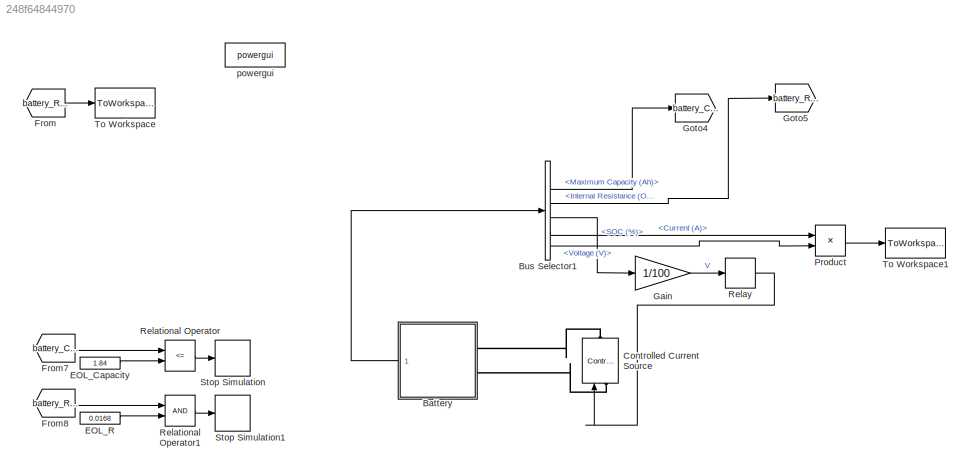
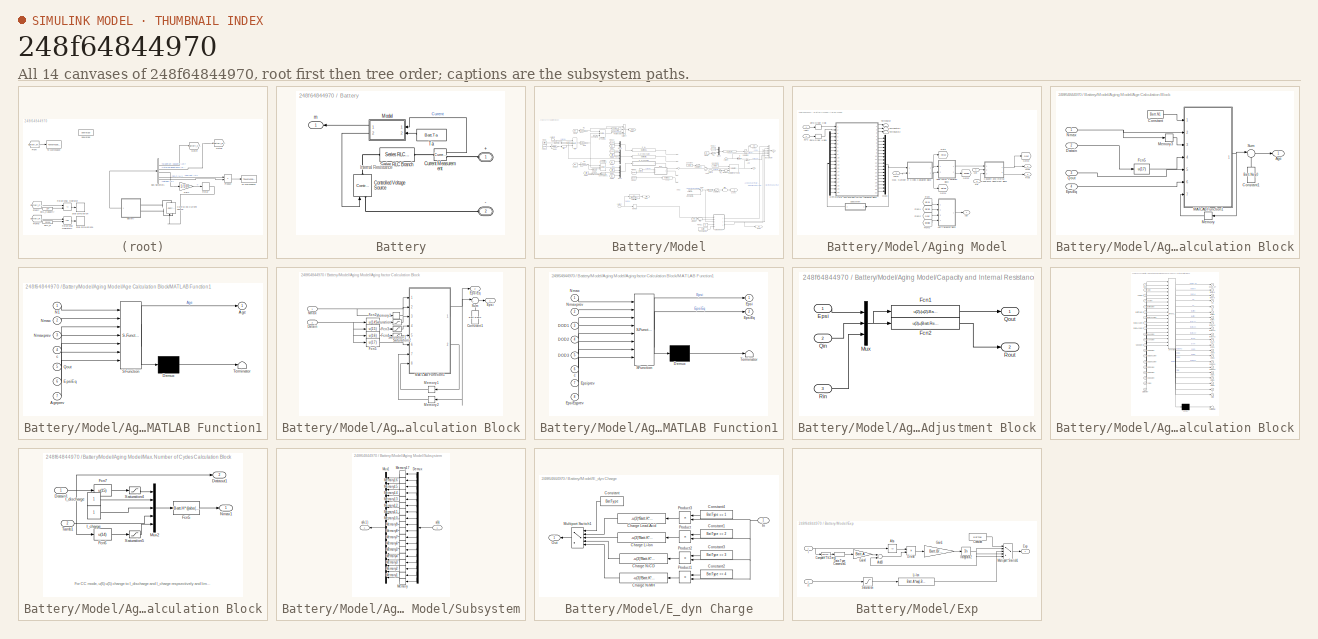
[diagram: thumbnail index - all 14 canvases of the model, root first then tree order]
MODEL slx_248f64844970
KIND model
CONFIG AbsTol = auto
CONFIG EnableMultiTasking = off
CONFIG FixedStep = auto
CONFIG MaxStep = auto
CONFIG MinStep = auto
CONFIG RelTol = 1e-3
CONFIG SampleTimeConstraint = Unconstrained
CONFIG Solver = VariableStepAuto
CONFIG SolverName = VariableStepAuto
CONFIG StartTime = 0.0
CONFIG StopTime = 3600*2000
BLOCK [SubSystem] Battery
  AncestorBlock = electricdrivelib/Extra Sources/Battery
  CloseFcn = sps_rtmsupport('CloseFcn',gcbh);
  CopyFcn = sps_rtmsupport('CopyFcn',gcbh);
  DeleteFcn = sps_rtmsupport('DeleteFcn',gcbh);
  DialogController = POWERSYS.PowerSysDialog
  InitFcn = BatteryCback(gcb,1)
  LoadFcn = sps_rtmsupport('LoadFcn',gcbh); BatteryLoadFcn(gcb)
  ModelCloseFcn = sps_rtmsupport('ModelCloseFcn',gcbh);
  NameChangeFcn = sps_rtmsupport('NameChangeFcn',gcbh);
  OpenFcn = sps_rtmsupport('OpenFcn',gcbh, [1,2,3,4,9,18]);
  Ports = [0, 1, 0, 0, 0, 2]
  PostSaveFcn = sps_rtmsupport('PostSaveFcn',gcbh);
  PreCopyFcn = sps_rtmsupport('PreCopyFcn',gcbh);
  PreDeleteFcn = sps_rtmsupport('PreDeleteFcn',gcbh);
  PreSaveFcn = sps_rtmsupport('PreSaveFcn',gcbh);
  RequestExecContextInheritance = off
  StartFcn = sps_rtmsupport('StartFcn',gcbh);
  StopFcn = sps_rtmsupport('StopFcn',gcbh);
  UndoDeleteFcn = sps_rtmsupport('UndoDeleteFcn',gcbh);
BLOCK [PMIOPort] Battery/+
  Side = Left
  Tag = PMCPort
BLOCK [PMIOPort] Battery/-
  Port = 2
  Side = Left
  Tag = PMCPort
BLOCK [Reference] Battery/Controlled Voltage Source  REF=powerlib/Electrical
Sources/Controlled Voltage Source
  Ports = [1, 0, 0, 0, 0, 1, 1]
  SourceBlock = powerlib/Electrical\nSources/Controlled Voltage Source
  SourceProductBaseCode = PS
  SourceType = Controlled Voltage Source
BLOCK [Reference] Battery/Current Measurement  REF=powerlib/Measurements/Current Measurement
  Ports = [0, 1, 0, 0, 0, 1, 1]
  SourceBlock = powerlib/Measurements/Current Measurement
  SourceProductBaseCode = PS
  SourceType = Current Measurement
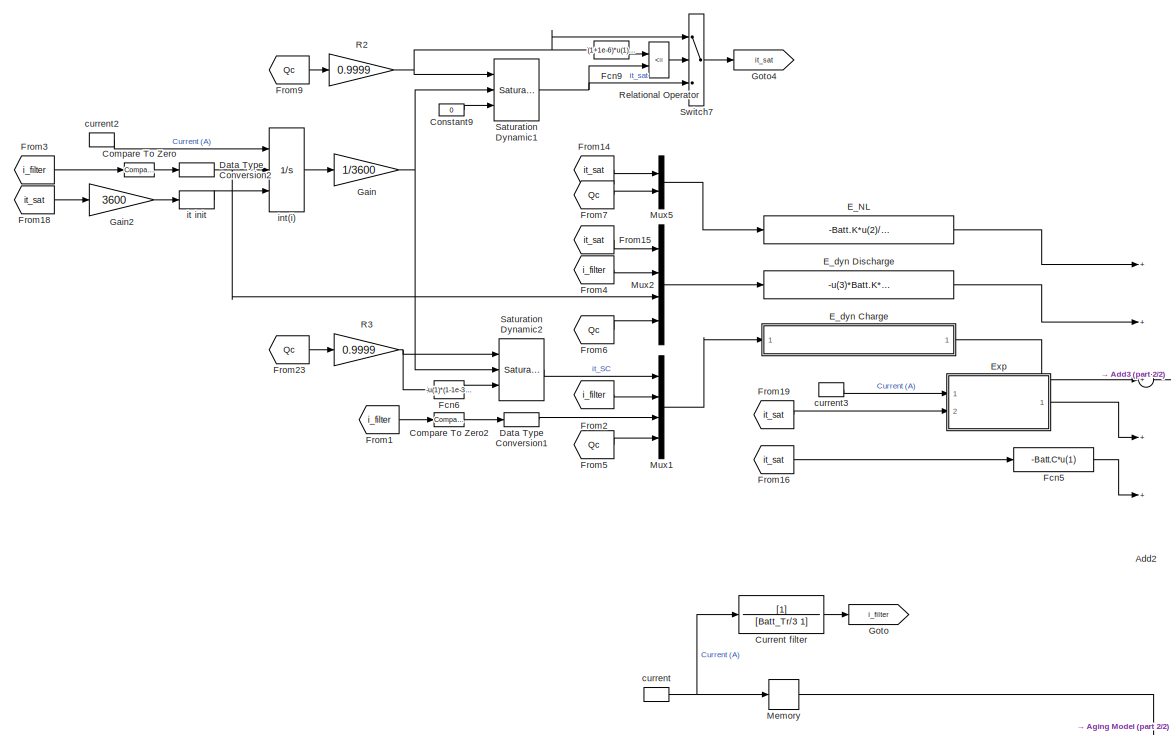
[diagram: Battery/Model - part 1/2, left side, full height]
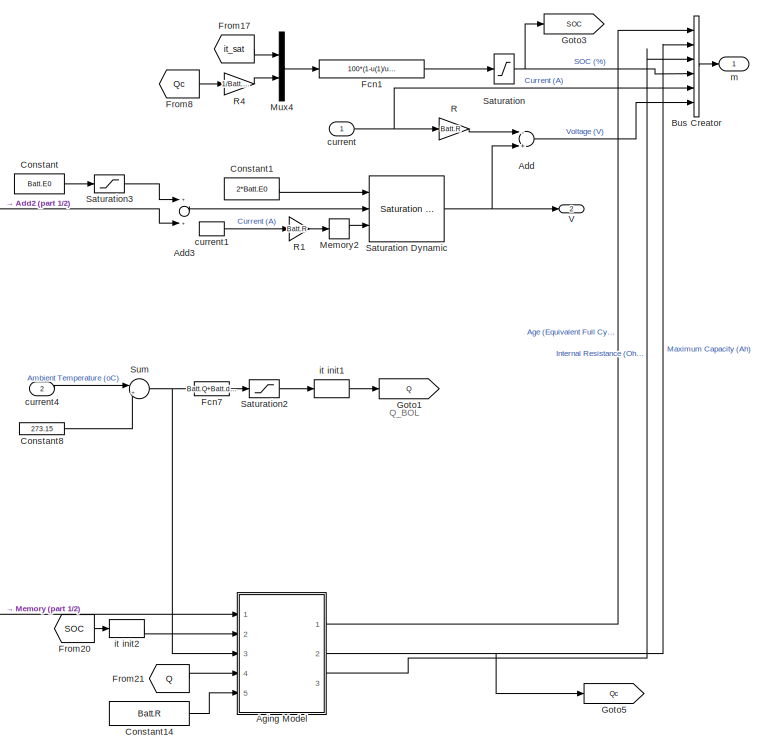
[diagram: Battery/Model - part 2/2, right side, full height]
BLOCK [SubSystem] Battery/Model
  AncestorBlock = spsBatteryModel/Continuous thermal aging
  Ports = [2, 2]
  RequestExecContextInheritance = off
BLOCK [Sum] Battery/Model/Add
  InputSameDT = off
  Inputs = -+
  OutDataTypeStr = Inherit: Inherit via internal rule
  Ports = [2, 1]
  SaturateOnIntegerOverflow = off
BLOCK [Sum] Battery/Model/Add2
  InputSameDT = off
  Inputs = +++++
  OutDataTypeStr = Inherit: Inherit via internal rule
  Ports = [5, 1]
  SaturateOnIntegerOverflow = off
BLOCK [Sum] Battery/Model/Add3
  InputSameDT = off
  OutDataTypeStr = Inherit: Inherit via internal rule
  Ports = [2, 1]
  SaturateOnIntegerOverflow = off
BLOCK [SubSystem] Battery/Model/Aging Model
  AncestorBlock = spsBatteryModel/Aging Model
  Ports = [5, 3]
  RequestExecContextInheritance = off
BLOCK [Outport] Battery/Model/Aging Model/Age
  IconDisplay = Port number
BLOCK [SubSystem] Battery/Model/Aging Model/Age Calculation Block
  Ports = [4, 1]
  RequestExecContextInheritance = off
BLOCK [Outport] Battery/Model/Aging Model/Age Calculation Block/Age
  IconDisplay = Port number
BLOCK [Constant] Battery/Model/Aging Model/Age Calculation Block/Constant
  Value = Batt.N1
BLOCK [Constant] Battery/Model/Aging Model/Age Calculation Block/Constant1
  Value = Batt.Neq0
BLOCK [Inport] Battery/Model/Aging Model/Age Calculation Block/Datain
  IconDisplay = Port number
  Port = 2
BLOCK [Inport] Battery/Model/Aging Model/Age Calculation Block/EpsiEq
  IconDisplay = Port number
  Port = 4
BLOCK [Fcn] Battery/Model/Aging Model/Age Calculation Block/Fcn5
  Expr = u(17)
BLOCK [SubSystem] Battery/Model/Aging Model/Age Calculation Block/MATLAB Function1
  ErrorFcn = Stateflow.Translate.translate
  PermitHierarchicalResolution = ExplicitOnly
  Ports = [7, 1]
  RequestExecContextInheritance = off
  SFBlockType = MATLAB Function
  TreatAsAtomicUnit = on
BLOCK [Demux] Battery/Model/Aging Model/Age Calculation Block/MATLAB Function1/ Demux 
  DisplayOption = bar
  Outputs = 1
  Ports = [1, 1]
BLOCK [S-Function] Battery/Model/Aging Model/Age Calculation Block/MATLAB Function1/ SFunction 
  EnableBusSupport = on
  FunctionName = sf_sfun
  PortCounts = [7 2]
  Ports = [7, 2]
  SFcnIsStateOwnerBlock = off
  SFunctionDeploymentMode = off
  Tag = Stateflow S-Function CC_2019a 4
BLOCK [Terminator] Battery/Model/Aging Model/Age Calculation Block/MATLAB Function1/ Terminator 
BLOCK [Outport] Battery/Model/Aging Model/Age Calculation Block/MATLAB Function1/Age
  IconDisplay = Port number
BLOCK [Inport] Battery/Model/Aging Model/Age Calculation Block/MATLAB Function1/Ageprev
  IconDisplay = Port number
  Port = 7
BLOCK [Inport] Battery/Model/Aging Model/Age Calculation Block/MATLAB Function1/EpsiEq
  IconDisplay = Port number
  Port = 6
BLOCK [Inport] Battery/Model/Aging Model/Age Calculation Block/MATLAB Function1/N1
  IconDisplay = Port number
BLOCK [Inport] Battery/Model/Aging Model/Age Calculation Block/MATLAB Function1/Nmax
  IconDisplay = Port number
  Port = 2
BLOCK [Inport] Battery/Model/Aging Model/Age Calculation Block/MATLAB Function1/Nmaxprev
  IconDisplay = Port number
  Port = 3
BLOCK [Inport] Battery/Model/Aging Model/Age Calculation Block/MATLAB Function1/Qout
  IconDisplay = Port number
  Port = 5
BLOCK [Inport] Battery/Model/Aging Model/Age Calculation Block/MATLAB Function1/c
  IconDisplay = Port number
  Port = 4
BLOCK [Memory] Battery/Model/Aging Model/Age Calculation Block/Memory
  InheritSampleTime = on
BLOCK [Memory] Battery/Model/Aging Model/Age Calculation Block/Memory3
  InheritSampleTime = on
BLOCK [Inport] Battery/Model/Aging Model/Age Calculation Block/Nmax
  IconDisplay = Port number
BLOCK [Inport] Battery/Model/Aging Model/Age Calculation Block/Qout
  IconDisplay = Port number
  Port = 3
BLOCK [Sum] Battery/Model/Aging Model/Age Calculation Block/Sum
  IconShape = round
  InputSameDT = off
  Inputs = |++
  OutDataTypeStr = Inherit: Inherit via internal rule
  Ports = [2, 1]
  SaturateOnIntegerOverflow = off
BLOCK [SubSystem] Battery/Model/Aging Model/Aging factor Calculation Block
  Ports = [2, 2]
  RequestExecContextInheritance = off
BLOCK [Constant] Battery/Model/Aging Model/Aging factor Calculation Block/Constant1
  Value = Batt.Epsi0
BLOCK [Inport] Battery/Model/Aging Model/Aging factor Calculation Block/Datain
  IconDisplay = Port number
  Port = 2
BLOCK [Outport] Battery/Model/Aging Model/Aging factor Calculation Block/Epsi
  IconDisplay = Port number
BLOCK [Outport] Battery/Model/Aging Model/Aging factor Calculation Block/EpsiEq
  IconDisplay = Port number
  Port = 2
BLOCK [Fcn] Battery/Model/Aging Model/Aging factor Calculation Block/Fcn2
  Expr = u(14)
BLOCK [Fcn] Battery/Model/Aging Model/Aging factor Calculation Block/Fcn3
  Expr = u(15)
BLOCK [Fcn] Battery/Model/Aging Model/Aging factor Calculation Block/Fcn4
  Expr = u(16)
BLOCK [Fcn] Battery/Model/Aging Model/Aging factor Calculation Block/Fcn5
  Expr = u(17)
BLOCK [SubSystem] Battery/Model/Aging Model/Aging factor Calculation Block/MATLAB Function1
  ErrorFcn = Stateflow.Translate.translate
  PermitHierarchicalResolution = ExplicitOnly
  Ports = [8, 2]
  RequestExecContextInheritance = off
  SFBlockType = MATLAB Function
  TreatAsAtomicUnit = on
BLOCK [Demux] Battery/Model/Aging Model/Aging factor Calculation Block/MATLAB Function1/ Demux 
  DisplayOption = bar
  Outputs = 1
  Ports = [1, 1]
BLOCK [S-Function] Battery/Model/Aging Model/Aging factor Calculation Block/MATLAB Function1/ SFunction 
  EnableBusSupport = on
  FunctionName = sf_sfun
  PortCounts = [8 3]
  Ports = [8, 3]
  SFcnIsStateOwnerBlock = off
  SFunctionDeploymentMode = off
  Tag = Stateflow S-Function CC_2019a 1
BLOCK [Terminator] Battery/Model/Aging Model/Aging factor Calculation Block/MATLAB Function1/ Terminator 
BLOCK [Inport] Battery/Model/Aging Model/Aging factor Calculation Block/MATLAB Function1/DOD1
  IconDisplay = Port number
  Port = 3
BLOCK [Inport] Battery/Model/Aging Model/Aging factor Calculation Block/MATLAB Function1/DOD2
  IconDisplay = Port number
  Port = 4
BLOCK [Inport] Battery/Model/Aging Model/Aging factor Calculation Block/MATLAB Function1/DOD3
  IconDisplay = Port number
  Port = 5
BLOCK [Outport] Battery/Model/Aging Model/Aging factor Calculation Block/MATLAB Function1/Epsi
  IconDisplay = Port number
BLOCK [Outport] Battery/Model/Aging Model/Aging factor Calculation Block/MATLAB Function1/EpsiEq
  IconDisplay = Port number
  Port = 2
BLOCK [Inport] Battery/Model/Aging Model/Aging factor Calculation Block/MATLAB Function1/EpsiEqprev
  IconDisplay = Port number
  Port = 8
BLOCK [Inport] Battery/Model/Aging Model/Aging factor Calculation Block/MATLAB Function1/Epsiprev
  IconDisplay = Port number
  Port = 7
BLOCK [Inport] Battery/Model/Aging Model/Aging factor Calculation Block/MATLAB Function1/Nmax
  IconDisplay = Port number
BLOCK [Inport] Battery/Model/Aging Model/Aging factor Calculation Block/MATLAB Function1/Nmaxprev
  IconDisplay = Port number
  Port = 2
BLOCK [Inport] Battery/Model/Aging Model/Aging factor Calculation Block/MATLAB Function1/c
  IconDisplay = Port number
  Port = 6
BLOCK [Memory] Battery/Model/Aging Model/Aging factor Calculation Block/Memory1
  InheritSampleTime = on
BLOCK [Memory] Battery/Model/Aging Model/Aging factor Calculation Block/Memory2
  InheritSampleTime = on
BLOCK [Memory] Battery/Model/Aging Model/Aging factor Calculation Block/Memory3
  InheritSampleTime = on
BLOCK [Inport] Battery/Model/Aging Model/Aging factor Calculation Block/Nmax
  IconDisplay = Port number
BLOCK [Saturate] Battery/Model/Aging Model/Aging factor Calculation Block/Saturation
  InputPortMap = u0
  LowerLimit = 0.01
  Ports = [1, 1]
  UpperLimit = inf
BLOCK [Saturate] Battery/Model/Aging Model/Aging factor Calculation Block/Saturation1
  InputPortMap = u0
  LowerLimit = 0.01
  Ports = [1, 1]
  UpperLimit = inf
BLOCK [Saturate] Battery/Model/Aging Model/Aging factor Calculation Block/Saturation2
  InputPortMap = u0
  LowerLimit = 0.01
  Ports = [1, 1]
  UpperLimit = inf
BLOCK [Sum] Battery/Model/Aging Model/Aging factor Calculation Block/Sum
  IconShape = round
  InputSameDT = off
  Inputs = |++
  OutDataTypeStr = Inherit: Inherit via internal rule
  Ports = [2, 1]
  SaturateOnIntegerOverflow = off
BLOCK [SubSystem] Battery/Model/Aging Model/Capacity and Internal Resistance Adjustment Block
  Ports = [3, 2]
  RequestExecContextInheritance = off
BLOCK [Inport] Battery/Model/Aging Model/Capacity and Internal Resistance Adjustment Block/Epsi
  IconDisplay = Port number
BLOCK [Fcn] Battery/Model/Aging Model/Capacity and Internal Resistance Adjustment Block/Fcn1
  Expr = u(2)-(u(2)-Batt.Qeol)*u(1)
BLOCK [Fcn] Battery/Model/Aging Model/Capacity and Internal Resistance Adjustment Block/Fcn2
  Expr = u(3)+(Batt.Reol-u(3))*u(1)
BLOCK [Mux] Battery/Model/Aging Model/Capacity and Internal Resistance Adjustment Block/Mux
  DisplayOption = bar
  Inputs = 3
  Ports = [3, 1]
BLOCK [Inport] Battery/Model/Aging Model/Capacity and Internal Resistance Adjustment Block/Qin
  IconDisplay = Port number
  Port = 2
BLOCK [Outport] Battery/Model/Aging Model/Capacity and Internal Resistance Adjustment Block/Qout
  IconDisplay = Port number
BLOCK [Inport] Battery/Model/Aging Model/Capacity and Internal Resistance Adjustment Block/Rin
  IconDisplay = Port number
  Port = 3
BLOCK [Outport] Battery/Model/Aging Model/Capacity and Internal Resistance Adjustment Block/Rout
  IconDisplay = Port number
  Port = 2
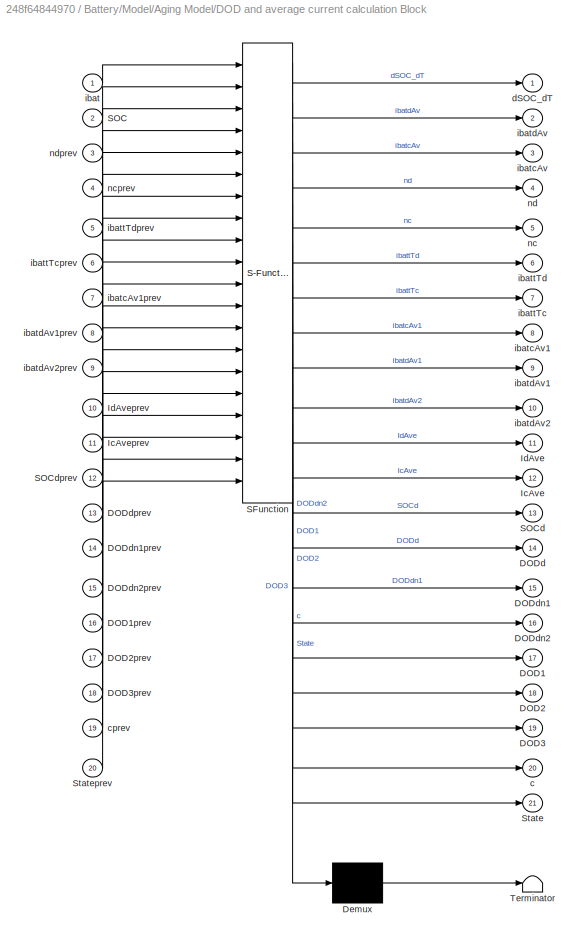
BLOCK [SubSystem] Battery/Model/Aging Model/DOD and average current calculation Block
  ErrorFcn = Stateflow.Translate.translate
  PermitHierarchicalResolution = ExplicitOnly
  Ports = [20, 21]
  RequestExecContextInheritance = off
  SFBlockType = MATLAB Function
  TreatAsAtomicUnit = on
BLOCK [Demux] Battery/Model/Aging Model/DOD and average current calculation Block/ Demux 
  DisplayOption = bar
  Outputs = 1
  Ports = [1, 1]
BLOCK [S-Function] Battery/Model/Aging Model/DOD and average current calculation Block/ SFunction 
  EnableBusSupport = on
  FunctionName = sf_sfun
  PortCounts = [20 22]
  Ports = [20, 22]
  SFcnIsStateOwnerBlock = off
  SFunctionDeploymentMode = off
  Tag = Stateflow S-Function CC_2019a 3
BLOCK [Terminator] Battery/Model/Aging Model/DOD and average current calculation Block/ Terminator 
BLOCK [Outport] Battery/Model/Aging Model/DOD and average current calculation Block/DOD1
  IconDisplay = Port number
  Port = 17
BLOCK [Inport] Battery/Model/Aging Model/DOD and average current calculation Block/DOD1prev
  IconDisplay = Port number
  Port = 16
BLOCK [Outport] Battery/Model/Aging Model/DOD and average current calculation Block/DOD2
  IconDisplay = Port number
  Port = 18
BLOCK [Inport] Battery/Model/Aging Model/DOD and average current calculation Block/DOD2prev
  IconDisplay = Port number
  Port = 17
BLOCK [Outport] Battery/Model/Aging Model/DOD and average current calculation Block/DOD3
  IconDisplay = Port number
  Port = 19
BLOCK [Inport] Battery/Model/Aging Model/DOD and average current calculation Block/DOD3prev
  IconDisplay = Port number
  Port = 18
BLOCK [Outport] Battery/Model/Aging Model/DOD and average current calculation Block/DODd
  IconDisplay = Port number
  Port = 14
BLOCK [Outport] Battery/Model/Aging Model/DOD and average current calculation Block/DODdn1
  IconDisplay = Port number
  Port = 15
BLOCK [Inport] Battery/Model/Aging Model/DOD and average current calculation Block/DODdn1prev
  IconDisplay = Port number
  Port = 14
BLOCK [Outport] Battery/Model/Aging Model/DOD and average current calculation Block/DODdn2
  IconDisplay = Port number
  Port = 16
BLOCK [Inport] Battery/Model/Aging Model/DOD and average current calculation Block/DODdn2prev
  IconDisplay = Port number
  Port = 15
BLOCK [Inport] Battery/Model/Aging Model/DOD and average current calculation Block/DODdprev
  IconDisplay = Port number
  Port = 13
BLOCK [Outport] Battery/Model/Aging Model/DOD and average current calculation Block/IcAve
  IconDisplay = Port number
  Port = 12
BLOCK [Inport] Battery/Model/Aging Model/DOD and average current calculation Block/IcAveprev
  IconDisplay = Port number
  Port = 11
BLOCK [Outport] Battery/Model/Aging Model/DOD and average current calculation Block/IdAve
  IconDisplay = Port number
  Port = 11
BLOCK [Inport] Battery/Model/Aging Model/DOD and average current calculation Block/IdAveprev
  IconDisplay = Port number
  Port = 10
BLOCK [Inport] Battery/Model/Aging Model/DOD and average current calculation Block/SOC
  IconDisplay = Port number
  Port = 2
BLOCK [Outport] Battery/Model/Aging Model/DOD and average current calculation Block/SOCd
  IconDisplay = Port number
  Port = 13
BLOCK [Inport] Battery/Model/Aging Model/DOD and average current calculation Block/SOCdprev
  IconDisplay = Port number
  Port = 12
BLOCK [Outport] Battery/Model/Aging Model/DOD and average current calculation Block/State
  IconDisplay = Port number
  Port = 21
BLOCK [Inport] Battery/Model/Aging Model/DOD and average current calculation Block/Stateprev
  IconDisplay = Port number
  Port = 20
BLOCK [Outport] Battery/Model/Aging Model/DOD and average current calculation Block/c
  IconDisplay = Port number
  Port = 20
BLOCK [Inport] Battery/Model/Aging Model/DOD and average current calculation Block/cprev
  IconDisplay = Port number
  Port = 19
BLOCK [Outport] Battery/Model/Aging Model/DOD and average current calculation Block/dSOC_dT
  IconDisplay = Port number
BLOCK [Inport] Battery/Model/Aging Model/DOD and average current calculation Block/ibat
  IconDisplay = Port number
BLOCK [Outport] Battery/Model/Aging Model/DOD and average current calculation Block/ibatcAv
  IconDisplay = Port number
  Port = 3
BLOCK [Outport] Battery/Model/Aging Model/DOD and average current calculation Block/ibatcAv1
  IconDisplay = Port number
  Port = 8
BLOCK [Inport] Battery/Model/Aging Model/DOD and average current calculation Block/ibatcAv1prev
  IconDisplay = Port number
  Port = 7
BLOCK [Outport] Battery/Model/Aging Model/DOD and average current calculation Block/ibatdAv
  IconDisplay = Port number
  Port = 2
BLOCK [Outport] Battery/Model/Aging Model/DOD and average current calculation Block/ibatdAv1
  IconDisplay = Port number
  Port = 9
BLOCK [Inport] Battery/Model/Aging Model/DOD and average current calculation Block/ibatdAv1prev
  IconDisplay = Port number
  Port = 8
BLOCK [Outport] Battery/Model/Aging Model/DOD and average current calculation Block/ibatdAv2
  IconDisplay = Port number
  Port = 10
BLOCK [Inport] Battery/Model/Aging Model/DOD and average current calculation Block/ibatdAv2prev
  IconDisplay = Port number
  Port = 9
BLOCK [Outport] Battery/Model/Aging Model/DOD and average current calculation Block/ibattTc
  IconDisplay = Port number
  Port = 7
BLOCK [Inport] Battery/Model/Aging Model/DOD and average current calculation Block/ibattTcprev
  IconDisplay = Port number
  Port = 6
BLOCK [Outport] Battery/Model/Aging Model/DOD and average current calculation Block/ibattTd
  IconDisplay = Port number
  Port = 6
BLOCK [Inport] Battery/Model/Aging Model/DOD and average current calculation Block/ibattTdprev
  IconDisplay = Port number
  Port = 5
BLOCK [Outport] Battery/Model/Aging Model/DOD and average current calculation Block/nc
  IconDisplay = Port number
  Port = 5
BLOCK [Inport] Battery/Model/Aging Model/DOD and average current calculation Block/ncprev
  IconDisplay = Port number
  Port = 4
BLOCK [Outport] Battery/Model/Aging Model/DOD and average current calculation Block/nd
  IconDisplay = Port number
  Port = 4
BLOCK [Inport] Battery/Model/Aging Model/DOD and average current calculation Block/ndprev
  IconDisplay = Port number
  Port = 3
BLOCK [Demux] Battery/Model/Aging Model/Demux1
  Outputs = 18
  Ports = [1, 18]
BLOCK [From] Battery/Model/Aging Model/From
  GotoTag = Nmax
BLOCK [From] Battery/Model/Aging Model/From1
  GotoTag = Datain
BLOCK [From] Battery/Model/Aging Model/From2
  GotoTag = Qout
BLOCK [From] Battery/Model/Aging Model/From3
  GotoTag = EpsiEq
BLOCK [Goto] Battery/Model/Aging Model/Goto
  GotoTag = Nmax
BLOCK [Goto] Battery/Model/Aging Model/Goto1
  GotoTag = Datain
BLOCK [Goto] Battery/Model/Aging Model/Goto2
  GotoTag = EpsiEq
BLOCK [Goto] Battery/Model/Aging Model/Goto3
  GotoTag = Qout
BLOCK [Inport] Battery/Model/Aging Model/Ibatt
  IconDisplay = Port number
BLOCK [SubSystem] Battery/Model/Aging Model/Max. Number of Cycles Calculation Block
  Ports = [2, 2]
  RequestExecContextInheritance = off
BLOCK [Inport] Battery/Model/Aging Model/Max. Number of Cycles Calculation Block/Datain1
  IconDisplay = Port number
BLOCK [Outport] Battery/Model/Aging Model/Max. Number of Cycles Calculation Block/Dataout1
  IconDisplay = Port number
  Port = 2
BLOCK [Fcn] Battery/Model/Aging Model/Max. Number of Cycles Calculation Block/Fcn5
  Expr = Batt.H*((abs(u(1)-u(5))/100)^(-1))*exp(-Batt.phi*((1/Batt.Tref)-(1/u(4))))*(u(2)^(-Batt.gamma1))*(u(3)^(-Batt.gamma2))
BLOCK [Fcn] Battery/Model/Aging Model/Max. Number of Cycles Calculation Block/Fcn6
  Expr = u(14)
BLOCK [Fcn] Battery/Model/Aging Model/Max. Number of Cycles Calculation Block/Fcn7
  Expr = u(15)
BLOCK [Constant] Battery/Model/Aging Model/Max. Number of Cycles Calculation Block/I_charge
BLOCK [Constant] Battery/Model/Aging Model/Max. Number of Cycles Calculation Block/I_discharge
BLOCK [Mux] Battery/Model/Aging Model/Max. Number of Cycles Calculation Block/Mux2
  DisplayOption = bar
  Inputs = 5
  Ports = [5, 1]
BLOCK [Outport] Battery/Model/Aging Model/Max. Number of Cycles Calculation Block/Nmax1
  IconDisplay = Port number
BLOCK [Saturate] Battery/Model/Aging Model/Max. Number of Cycles Calculation Block/Saturation4
  InputPortMap = u0
  LowerLimit = 0.01
  Ports = [1, 1]
  UpperLimit = inf
BLOCK [Saturate] Battery/Model/Aging Model/Max. Number of Cycles Calculation Block/Saturation5
  InputPortMap = u0
  LowerLimit = 0.01
  Ports = [1, 1]
  UpperLimit = inf
BLOCK [Inport] Battery/Model/Aging Model/Max. Number of Cycles Calculation Block/Tamb1
  IconDisplay = Port number
  Port = 2
BLOCK [Mux] Battery/Model/Aging Model/Mux3
  Inputs = 18
  Ports = [18, 1]
BLOCK [Inport] Battery/Model/Aging Model/Qin
  IconDisplay = Port number
  Port = 4
BLOCK [Outport] Battery/Model/Aging Model/Qout
  IconDisplay = Port number
  Port = 2
BLOCK [Inport] Battery/Model/Aging Model/Rin
  IconDisplay = Port number
  Port = 5
BLOCK [Outport] Battery/Model/Aging Model/Rout
  IconDisplay = Port number
  Port = 3
BLOCK [Inport] Battery/Model/Aging Model/SOC
  IconDisplay = Port number
  Port = 2
BLOCK [SubSystem] Battery/Model/Aging Model/Subsystem
  Ports = [1, 1]
  RequestExecContextInheritance = off
BLOCK [Demux] Battery/Model/Aging Model/Subsystem/Demux
  Outputs = 18
  Ports = [1, 18]
BLOCK [Memory] Battery/Model/Aging Model/Subsystem/Memory
  InheritSampleTime = on
  InitialCondition = 1
BLOCK [Memory] Battery/Model/Aging Model/Subsystem/Memory1
  InheritSampleTime = on
BLOCK [Memory] Battery/Model/Aging Model/Subsystem/Memory10
  InheritSampleTime = on
BLOCK [Memory] Battery/Model/Aging Model/Subsystem/Memory11
  InheritSampleTime = on
BLOCK [Memory] Battery/Model/Aging Model/Subsystem/Memory12
  InheritSampleTime = on
BLOCK [Memory] Battery/Model/Aging Model/Subsystem/Memory13
  InheritSampleTime = on
BLOCK [Memory] Battery/Model/Aging Model/Subsystem/Memory14
  InheritSampleTime = on
BLOCK [Memory] Battery/Model/Aging Model/Subsystem/Memory15
  InheritSampleTime = on
BLOCK [Memory] Battery/Model/Aging Model/Subsystem/Memory16
  InheritSampleTime = on
BLOCK [Memory] Battery/Model/Aging Model/Subsystem/Memory17
  InheritSampleTime = on
BLOCK [Memory] Battery/Model/Aging Model/Subsystem/Memory2
  InheritSampleTime = on
BLOCK [Memory] Battery/Model/Aging Model/Subsystem/Memory3
  InheritSampleTime = on
BLOCK [Memory] Battery/Model/Aging Model/Subsystem/Memory4
  InheritSampleTime = on
BLOCK [Memory] Battery/Model/Aging Model/Subsystem/Memory5
  InheritSampleTime = on
BLOCK [Memory] Battery/Model/Aging Model/Subsystem/Memory6
  InheritSampleTime = on
BLOCK [Memory] Battery/Model/Aging Model/Subsystem/Memory7
  InheritSampleTime = on
BLOCK [Memory] Battery/Model/Aging Model/Subsystem/Memory8
  InheritSampleTime = on
  InitialCondition = SOC
BLOCK [Memory] Battery/Model/Aging Model/Subsystem/Memory9
  InheritSampleTime = on
BLOCK [Mux] Battery/Model/Aging Model/Subsystem/Mux1
  Inputs = 18
  Ports = [18, 1]
BLOCK [Inport] Battery/Model/Aging Model/Subsystem/x(k)
  IconDisplay = Port number
BLOCK [Outport] Battery/Model/Aging Model/Subsystem/x(k-1)
  IconDisplay = Port number
BLOCK [Inport] Battery/Model/Aging Model/Tamb
  IconDisplay = Port number
  Port = 3
BLOCK [Terminator] Battery/Model/Aging Model/Terminator
BLOCK [Terminator] Battery/Model/Aging Model/Terminator1
BLOCK [Terminator] Battery/Model/Aging Model/Terminator2
BLOCK [ZeroOrderHold] Battery/Model/Aging Model/Zero-Order Hold
  SampleTime = Batt.Tsim
BLOCK [ZeroOrderHold] Battery/Model/Aging Model/Zero-Order Hold1
  SampleTime = Batt.Tsim
BLOCK [BusCreator] Battery/Model/Bus Creator
  DisplayOption = bar
  InheritFromInputs = on
  Inputs = 6
  Ports = [6, 1]
BLOCK [Reference] Battery/Model/Compare To Zero  REF=simulink/Logic and Bit
Operations/Compare
To Zero
  Ports = [1, 1]
  SourceBlock = simulink/Logic and Bit\nOperations/Compare\nTo Zero
  SourceProductBaseCode = SL
  SourceType = Compare To Zero
BLOCK [Reference] Battery/Model/Compare To Zero2  REF=simulink/Logic and Bit
Operations/Compare
To Zero
  Ports = [1, 1]
  SourceBlock = simulink/Logic and Bit\nOperations/Compare\nTo Zero
  SourceProductBaseCode = SL
  SourceType = Compare To Zero
BLOCK [Constant] Battery/Model/Constant
  Value = Batt.E0
BLOCK [Constant] Battery/Model/Constant1
  Value = 2*Batt.E0
BLOCK [Constant] Battery/Model/Constant14
  Value = Batt.R
BLOCK [Constant] Battery/Model/Constant8
  Value = 273.15
BLOCK [Constant] Battery/Model/Constant9
  Value = 0
BLOCK [TransferFcn] Battery/Model/Current filter
  Denominator = [Batt_Tr/3 1]
BLOCK [DataTypeConversion] Battery/Model/Data Type Conversion1
  RndMeth = Floor
  SaturateOnIntegerOverflow = off
BLOCK [DataTypeConversion] Battery/Model/Data Type Conversion2
  RndMeth = Floor
  SaturateOnIntegerOverflow = off
BLOCK [Fcn] Battery/Model/E_NL
  Expr = -Batt.K*u(2)/(u(2)-u(1))*u(1)
BLOCK [SubSystem] Battery/Model/E_dyn Charge
  Ports = [1, 1]
  RequestExecContextInheritance = off
BLOCK [Fcn] Battery/Model/E_dyn Charge/Charge Lead-Acid
  Expr = -u(3)*Batt.K*u(2)*(Batt.Q/(u(1)+Batt.Q*Batt.kc))
BLOCK [Fcn] Battery/Model/E_dyn Charge/Charge Li-Ion
  Expr = -u(3)*Batt.K*u(2)*u(4)/(u(1)+u(4)*Batt.kc)
BLOCK [Fcn] Battery/Model/E_dyn Charge/Charge NiCD
  Expr = -u(3)*Batt.K*u(2)*(Batt.Q/(abs(u(1))+Batt.Q*Batt.kc))
BLOCK [Fcn] Battery/Model/E_dyn Charge/Charge NiMH
  Expr = -u(3)*Batt.K*u(2)*(Batt.Q/(abs(u(1))+Batt.Q*Batt.kc))
BLOCK [Constant] Battery/Model/E_dyn Charge/Constant
  Value = BatType
BLOCK [Constant] Battery/Model/E_dyn Charge/Constant1
  OutDataTypeStr = double
  Value = BatType == 2
BLOCK [Constant] Battery/Model/E_dyn Charge/Constant2
  OutDataTypeStr = double
  Value = BatType == 4
BLOCK [Constant] Battery/Model/E_dyn Charge/Constant3
  OutDataTypeStr = double
  Value = BatType == 3
BLOCK [Constant] Battery/Model/E_dyn Charge/Constant4
  OutDataTypeStr = double
  Value = BatType == 1
BLOCK [Inport] Battery/Model/E_dyn Charge/In
  IconDisplay = Port number
BLOCK [MultiPortSwitch] Battery/Model/E_dyn Charge/Multiport Switch1
  InputSameDT = off
  Inputs = 4
  Ports = [5, 1]
  SaturateOnIntegerOverflow = off
BLOCK [Outport] Battery/Model/E_dyn Charge/Out
  IconDisplay = Port number
BLOCK [Product] Battery/Model/E_dyn Charge/Product
  InputSameDT = off
  OutDataTypeStr = Inherit: Inherit via internal rule
  Ports = [2, 1]
  SaturateOnIntegerOverflow = off
BLOCK [Product] Battery/Model/E_dyn Charge/Product1
  InputSameDT = off
  OutDataTypeStr = Inherit: Inherit via internal rule
  Ports = [2, 1]
  SaturateOnIntegerOverflow = off
BLOCK [Product] Battery/Model/E_dyn Charge/Product2
  InputSameDT = off
  OutDataTypeStr = Inherit: Inherit via internal rule
  Ports = [2, 1]
  SaturateOnIntegerOverflow = off
BLOCK [Product] Battery/Model/E_dyn Charge/Product3
  InputSameDT = off
  OutDataTypeStr = Inherit: Inherit via internal rule
  Ports = [2, 1]
  SaturateOnIntegerOverflow = off
BLOCK [Fcn] Battery/Model/E_dyn Discharge
  Expr = -u(3)*Batt.K*u(2)*u(4)/(u(4)-u(1))
BLOCK [SubSystem] Battery/Model/Exp
  Ports = [2, 1]
  RequestExecContextInheritance = off
BLOCK [Abs] Battery/Model/Exp/Abs
  SaturateOnIntegerOverflow = off
BLOCK [Sum] Battery/Model/Exp/Add3
  InputSameDT = off
  Inputs = +-
  OutDataTypeStr = Inherit: Inherit via internal rule
  Ports = [2, 1]
  SaturateOnIntegerOverflow = off
BLOCK [Reference] Battery/Model/Exp/Compare To Zero2  REF=simulink/Logic and Bit
Operations/Compare
To Zero
  Ports = [1, 1]
  SourceBlock = simulink/Logic and Bit\nOperations/Compare\nTo Zero
  SourceProductBaseCode = SL
  SourceType = Compare To Zero
BLOCK [Constant] Battery/Model/Exp/Constant
  Value = BatType
BLOCK [DataTypeConversion] Battery/Model/Exp/Data Type Conversion1
  RndMeth = Floor
  SaturateOnIntegerOverflow = off
BLOCK [Product] Battery/Model/Exp/Divide
  InputSameDT = off
  Inputs = **
  OutDataTypeStr = Inherit: Inherit via internal rule
  Ports = [2, 1]
  RndMeth = Floor
  SaturateOnIntegerOverflow = off
BLOCK [Outport] Battery/Model/Exp/Exp
  IconDisplay = Port number
BLOCK [Gain] Battery/Model/Exp/Gain1
  Gain = Batt.B/3600
  OutDataTypeStr = Inherit: Inherit via internal rule
  ParamDataTypeStr = Inherit: Inherit via internal rule
  SaturateOnIntegerOverflow = off
BLOCK [Gain] Battery/Model/Exp/Gain4
  Gain = Batt.A
  OutDataTypeStr = Inherit: Inherit via internal rule
  ParamDataTypeStr = Inherit: Inherit via internal rule
  SaturateOnIntegerOverflow = off
BLOCK [Integrator] Battery/Model/Exp/Integrator2
  InitialCondition = Batt.A*exp(-Batt.B*(1-SOC/100)*Batt.Q)
  Ports = [1, 1]
BLOCK [Fcn] Battery/Model/Exp/Li-Ion
  Expr = Batt.A*exp(-Batt.B*u(1))
BLOCK [MultiPortSwitch] Battery/Model/Exp/Multiport Switch1
  InputSameDT = off
  Inputs = 4
  Ports = [5, 1]
  SaturateOnIntegerOverflow = off
BLOCK [Saturate] Battery/Model/Exp/Saturation
  InputPortMap = u0
  LowerLimit = -inf
  Ports = [1, 1]
  UpperLimit = Batt.Qmax*(1/Batt.lambda)
BLOCK [Inport] Battery/Model/Exp/i
  IconDisplay = Port number
BLOCK [Inport] Battery/Model/Exp/it
  IconDisplay = Port number
  Port = 2
BLOCK [Fcn] Battery/Model/Fcn1
  Expr = 100*(1-u(1)/u(2))
BLOCK [Fcn] Battery/Model/Fcn5
  Expr = -Batt.C*u(1)
BLOCK [Fcn] Battery/Model/Fcn6
  Expr = -u(1)*(1-1e-3)*Batt.kcsat*0.9999
BLOCK [Fcn] Battery/Model/Fcn7
  Expr = Batt.Q+Batt.dQ_dT*(u(1)-Batt.NomT)
BLOCK [Fcn] Battery/Model/Fcn9
  Expr = (1+1e-6)*u(1)*(1/Batt.lambda)/0.9999
BLOCK [From] Battery/Model/From1
  GotoTag = i_filter
BLOCK [From] Battery/Model/From14
  GotoTag = it_sat
BLOCK [From] Battery/Model/From15
  GotoTag = it_sat
BLOCK [From] Battery/Model/From16
  GotoTag = it_sat
BLOCK [From] Battery/Model/From17
  GotoTag = it_sat
BLOCK [From] Battery/Model/From18
  GotoTag = it_sat
BLOCK [From] Battery/Model/From19
  GotoTag = it_sat
BLOCK [From] Battery/Model/From2
  GotoTag = i_filter
BLOCK [From] Battery/Model/From20
  GotoTag = SOC
BLOCK [From] Battery/Model/From21
  GotoTag = Q
BLOCK [From] Battery/Model/From23
  GotoTag = Qc
BLOCK [From] Battery/Model/From3
  GotoTag = i_filter
BLOCK [From] Battery/Model/From4
  GotoTag = i_filter
BLOCK [From] Battery/Model/From5
  GotoTag = Qc
BLOCK [From] Battery/Model/From6
  GotoTag = Qc
BLOCK [From] Battery/Model/From7
  GotoTag = Qc
BLOCK [From] Battery/Model/From8
  GotoTag = Qc
BLOCK [From] Battery/Model/From9
  GotoTag = Qc
BLOCK [Gain] Battery/Model/Gain
  Gain = 1/3600
  OutDataTypeStr = Inherit: Inherit via internal rule
  ParamDataTypeStr = Inherit: Inherit via internal rule
  SaturateOnIntegerOverflow = off
BLOCK [Gain] Battery/Model/Gain2
  Gain = 3600
  OutDataTypeStr = Inherit: Inherit via internal rule
  ParamDataTypeStr = Inherit: Inherit via internal rule
  SaturateOnIntegerOverflow = off
BLOCK [Goto] Battery/Model/Goto
  GotoTag = i_filter
BLOCK [Goto] Battery/Model/Goto1
  GotoTag = Q
BLOCK [Goto] Battery/Model/Goto3
  GotoTag = SOC
BLOCK [Goto] Battery/Model/Goto4
  GotoTag = it_sat
BLOCK [Goto] Battery/Model/Goto5
  GotoTag = Qc
BLOCK [Memory] Battery/Model/Memory
BLOCK [Memory] Battery/Model/Memory2
  InheritSampleTime = on
BLOCK [Mux] Battery/Model/Mux1
  DisplayOption = bar
  Ports = [4, 1]
BLOCK [Mux] Battery/Model/Mux2
  DisplayOption = bar
  Ports = [4, 1]
BLOCK [Mux] Battery/Model/Mux4
  DisplayOption = bar
  Inputs = 2
  Ports = [2, 1]
BLOCK [Mux] Battery/Model/Mux5
  DisplayOption = bar
  Inputs = 2
  Ports = [2, 1]
BLOCK [Gain] Battery/Model/R
  Gain = Batt.R
  OutDataTypeStr = Inherit: Inherit via internal rule
  ParamDataTypeStr = Inherit: Inherit via internal rule
  SaturateOnIntegerOverflow = off
BLOCK [Gain] Battery/Model/R1
  Gain = Batt.R
  OutDataTypeStr = Inherit: Inherit via internal rule
  ParamDataTypeStr = Inherit: Inherit via internal rule
  SaturateOnIntegerOverflow = off
BLOCK [Gain] Battery/Model/R2
  Gain = 0.9999
  OutDataTypeStr = Inherit: Inherit via internal rule
  ParamDataTypeStr = Inherit: Inherit via internal rule
  SaturateOnIntegerOverflow = off
BLOCK [Gain] Battery/Model/R3
  Gain = 0.9999
  OutDataTypeStr = Inherit: Inherit via internal rule
  ParamDataTypeStr = Inherit: Inherit via internal rule
  SaturateOnIntegerOverflow = off
BLOCK [Gain] Battery/Model/R4
  Gain = 1/Batt.lambda
  OutDataTypeStr = Inherit: Inherit via internal rule
  ParamDataTypeStr = Inherit: Inherit via internal rule
  SaturateOnIntegerOverflow = off
BLOCK [RelationalOperator] Battery/Model/Relational Operator
  InputSameDT = off
  Operator = <=
  Ports = [2, 1]
  RndMeth = Simplest
BLOCK [Saturate] Battery/Model/Saturation
  InputPortMap = u0
  LowerLimit = 0
  Ports = [1, 1]
  UpperLimit = 100
BLOCK [Reference] Battery/Model/Saturation Dynamic  REF=simulink/Discontinuities/Saturation
Dynamic
  Ports = [3, 1]
  SourceBlock = simulink/Discontinuities/Saturation\nDynamic
  SourceProductBaseCode = SL
  SourceType = Saturation Dynamic
BLOCK [Reference] Battery/Model/Saturation Dynamic1  REF=simulink/Discontinuities/Saturation
Dynamic
  Ports = [3, 1]
  SourceBlock = simulink/Discontinuities/Saturation\nDynamic
  SourceProductBaseCode = SL
  SourceType = Saturation Dynamic
BLOCK [Reference] Battery/Model/Saturation Dynamic2  REF=simulink/Discontinuities/Saturation
Dynamic
  Ports = [3, 1]
  SourceBlock = simulink/Discontinuities/Saturation\nDynamic
  SourceProductBaseCode = SL
  SourceType = Saturation Dynamic
BLOCK [Saturate] Battery/Model/Saturation2
  InputPortMap = u0
  LowerLimit = 0
  Ports = [1, 1]
  UpperLimit = max(NomQ,Batt.Q)
BLOCK [Saturate] Battery/Model/Saturation3
  InputPortMap = u0
  LowerLimit = -inf
  Ports = [1, 1]
  UpperLimit = Batt.Va-Batt.dE_dT*(Batt.Tci-Batt.NomT)-Batt.A
BLOCK [Sum] Battery/Model/Sum
  IconShape = round
  InputSameDT = off
  Inputs = |++
  OutDataTypeStr = Inherit: Inherit via internal rule
  Ports = [2, 1]
  SaturateOnIntegerOverflow = off
BLOCK [Switch] Battery/Model/Switch7
  Criteria = u2 > Threshold
  InputSameDT = off
  SaturateOnIntegerOverflow = off
BLOCK [Outport] Battery/Model/V
  IconDisplay = Port number
  Port = 2
BLOCK [Inport] Battery/Model/current
  IconDisplay = Port number
BLOCK [InportShadow] Battery/Model/current 
  IconDisplay = Port number
BLOCK [InportShadow] Battery/Model/current1
  IconDisplay = Port number
BLOCK [InportShadow] Battery/Model/current2
  IconDisplay = Port number
BLOCK [InportShadow] Battery/Model/current3
  IconDisplay = Port number
BLOCK [Inport] Battery/Model/current4
  IconDisplay = Port number
  Port = 2
BLOCK [Integrator] Battery/Model/int(i)
  ExternalReset = rising
  InitialCondition = (1-SOC/100)*Q*3600
  InitialConditionSource = external
  LimitOutput = on
  Ports = [3, 1]
  UpperSaturationLimit = Batt.Qmax*3600
BLOCK [Memory] Battery/Model/it init
  InitialCondition = (1-SOC/100)*Batt.Q*(1/Batt.lambda)*3600
BLOCK [Memory] Battery/Model/it init1
  InitialCondition = Batt.Q
BLOCK [Memory] Battery/Model/it init2
  InitialCondition = SOC
BLOCK [Outport] Battery/Model/m
  IconDisplay = Port number
BLOCK [Reference] Battery/Series RLC Branch  REF=powerlib/Elements/Series RLC Branch
  Ports = [0, 0, 0, 0, 0, 1, 1]
  SourceBlock = powerlib/Elements/Series RLC Branch
  SourceProductBaseCode = PS
  SourceType = Series RLC Branch
BLOCK [Constant] Battery/Ta
  Value = Batt.Ta
BLOCK [Outport] Battery/m
  IconDisplay = Port number
BLOCK [BusSelector] Bus Selector1
  OutputAsBus = off
  OutputSignals = Age (Equivalent Full Cycles),Maximum Capacity  (Ah),Internal Resistance (Ohm),SOC (%),Current (A),Voltage (V)
  Ports = [1, 6]
BLOCK [Reference] Controlled Current Source  REF=powerlib/Electrical
Sources/Controlled Current Source
  Ports = [1, 0, 0, 0, 0, 1, 1]
  SourceBlock = powerlib/Electrical\nSources/Controlled Current Source
  SourceProductBaseCode = PS
  SourceProductName = Simscape Electrical
  SourceType = Controlled Current Source
BLOCK [Constant] EOL_Capacity
  Value = 1.84
BLOCK [Constant] EOL_R
  Value = 0.0168
BLOCK [From] From
  GotoTag = battery_Resistance
BLOCK [From] From7
  GotoTag = battery_Capacity
BLOCK [From] From8
  GotoTag = battery_Resistance
BLOCK [Gain] Gain
  Gain = 1/100
  OutDataTypeStr = Inherit: Inherit via internal rule
  ParamDataTypeStr = Inherit: Inherit via internal rule
  SaturateOnIntegerOverflow = off
BLOCK [Goto] Goto4
  GotoTag = battery_Capacity
BLOCK [Goto] Goto5
  GotoTag = battery_Resistance
BLOCK [Product] Product
  InputSameDT = off
  OutDataTypeStr = Inherit: Inherit via internal rule
  Ports = [2, 1]
  RndMeth = Floor
  SaturateOnIntegerOverflow = off
BLOCK [RelationalOperator] Relational Operator
  InputSameDT = off
  Operator = <=
  OutDataTypeStr = boolean
  Ports = [2, 1]
  RndMeth = Simplest
BLOCK [RelationalOperator] Relational Operator1
  InputSameDT = off
  OutDataTypeStr = boolean
  Ports = [2, 1]
  RndMeth = Simplest
BLOCK [Relay] Relay
  OffOutputValue = I_charge(2)
  OffSwitchValue = SOC_min(2)/100
  OnOutputValue = -I_discharge(2)
  OnSwitchValue = SOC_max(2)/100
BLOCK [Stop] Stop Simulation
BLOCK [Stop] Stop Simulation1
BLOCK [ToWorkspace] To Workspace
  FixptAsFi = on
  MaxDataPoints = inf
  Ports = [1]
  SampleTime = -1
  Save2DSignal = 2-D array (concatenate along first dimension)
  VariableName = battery_Resistance
BLOCK [ToWorkspace] To Workspace1
  FixptAsFi = on
  MaxDataPoints = inf
  Ports = [1]
  SampleTime = -1
  Save2DSignal = 2-D array (concatenate along first dimension)
  VariableName = battery_Power
BLOCK [Reference] powergui  REF=powerlib/powergui
  Ports = []
  SourceBlock = powerlib/powergui
  SourceProductBaseCode = PS
  SourceProductName = Simscape Electrical
  SourceType = PSB option menu block
ANNOTATION Battery: Internal Resistance
ANNOTATION Battery/Model: Q_BOL
ANNOTATION Battery/Model/Aging Model/Max. Number of Cycles Calculation Block: For CC mode, u(6) u(5) change to I_discharge and I_charge respsectively and limiters should be removed
LINE Battery:1 -> Bus Selector1:1
LINE Bus Selector1:2 -> Goto4:1
LINE Bus Selector1:3 -> Goto5:1
LINE Bus Selector1:4 -> Gain:1
LINE Bus Selector1:5 -> Product:1
LINE Bus Selector1:6 -> Product:2
LINE EOL_Capacity:1 -> Relational Operator:2
LINE EOL_R:1 -> Relational Operator1:2
LINE From7:1 -> Relational Operator:1
LINE From8:1 -> Relational Operator1:1
LINE From:1 -> To Workspace:1
LINE Gain:1 -> Relay:1
LINE Product:1 -> To Workspace1:1
LINE Relational Operator1:1 -> Stop Simulation1:1
LINE Relational Operator:1 -> Stop Simulation:1
LINE Relay:1 -> Controlled Current Source:1
PLINE Battery:LConn1 -- Controlled Current Source:RConn1
PLINE Battery:LConn2 -- Controlled Current Source:LConn1
CHART Battery/Model/Aging Model/Aging factor
Calculation Block/MATLAB Function1 states=1 transitions=1
  STATE_LABEL 'eML_blk_kernel()'
  STATE_LABEL 'SCRIPT:\nfunction [Epsi,EpsiEq] = fcn(Nmax, Nmaxprev,DOD1,DOD2,DOD3,c,Epsiprev,EpsiEqprev)\n%#codegen\n Epsi = Epsiprev;\n EpsiEq = EpsiEqprev;\n \nif(c>=3)\nif (Nmax==Nmaxprev)\n    Epsi = Epsiprev;\n    EpsiEq = EpsiEqprev;\n    \nelse \n    Epsi = Epsiprev+(0.5/Nmax)*(1-(DOD3/DOD2))+(0.5/Nmax)*(1-(DOD1/DOD2));\n\nend\nend\n\n'
CHART Battery/Model/Aging Model/DOD and average current calculation
Block states=1 transitions=1
  STATE_LABEL 'eML_blk_kernel()'
  STATE_LABEL 'SCRIPT:\nfunction [dSOC_dT,ibatdAv,ibatcAv,nd,nc,ibattTd,ibattTc,ibatcAv1,ibatdAv1,ibatdAv2,IdAve,IcAve,SOCd,DODd,DODdn1,DODdn2,DOD1,DOD2,DOD3,c,State] = fcn(ibat,SOC,ndprev,ncprev,ibattTdprev,ibattTcprev,ibatcAv1prev,ibatdAv1prev,ibatdAv2prev,IdAveprev,IcAveprev,SOCdprev, DODdprev,DODdn1prev,DODdn2prev,DOD1prev, DOD2prev,DOD3prev,cprev,Stateprev)\n%#codegen\nDOD = 100 - SOCdprev; % original:100-SOC ...<+901ch>'
CHART Battery/Model/Aging Model/Age Calculation Block/MATLAB Function1 states=1 transitions=1
  STATE_LABEL 'eML_blk_kernel()'
  STATE_LABEL 'SCRIPT:\nfunction Age = fcn(N1, Nmax, Nmaxprev,c,Qout,EpsiEq,Ageprev)\n%#codegen\nAge = Ageprev;\n% Age = Neq0;\n\nif(c>=3)\nif (Nmax==Nmaxprev)\n    Age = Ageprev;    \nelse \n    Age = EpsiEq*N1; % N1\n\n%     if Qout>=2.3*0.91        \n%         Age = EpsiEq*N1;\n%     else\n%         Age = EpsiEq*N1+EpsiEq*Nmax; % N1\n%     end\n    \nend\nend\n\n'
